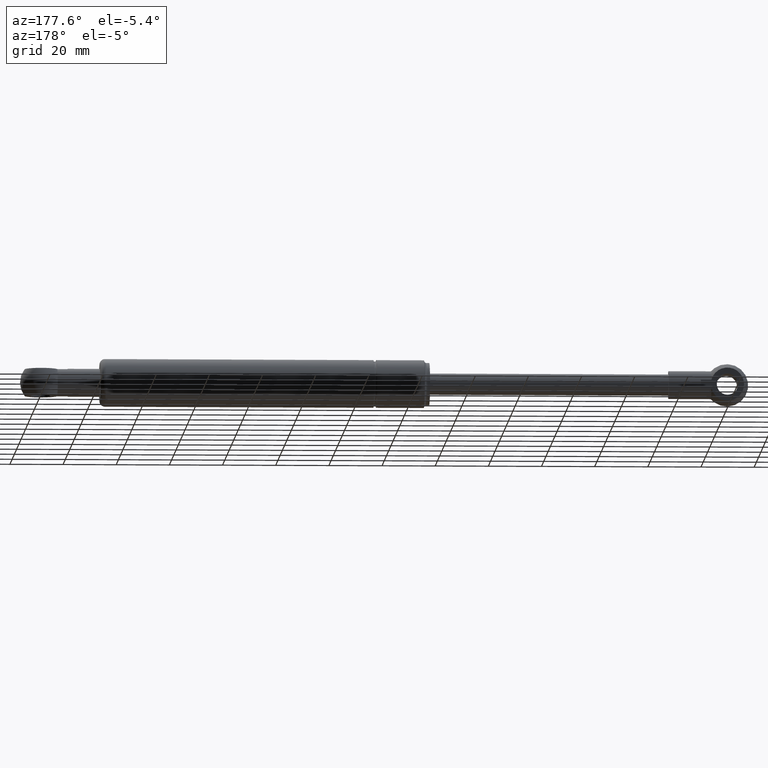
[diagram: clean part render]
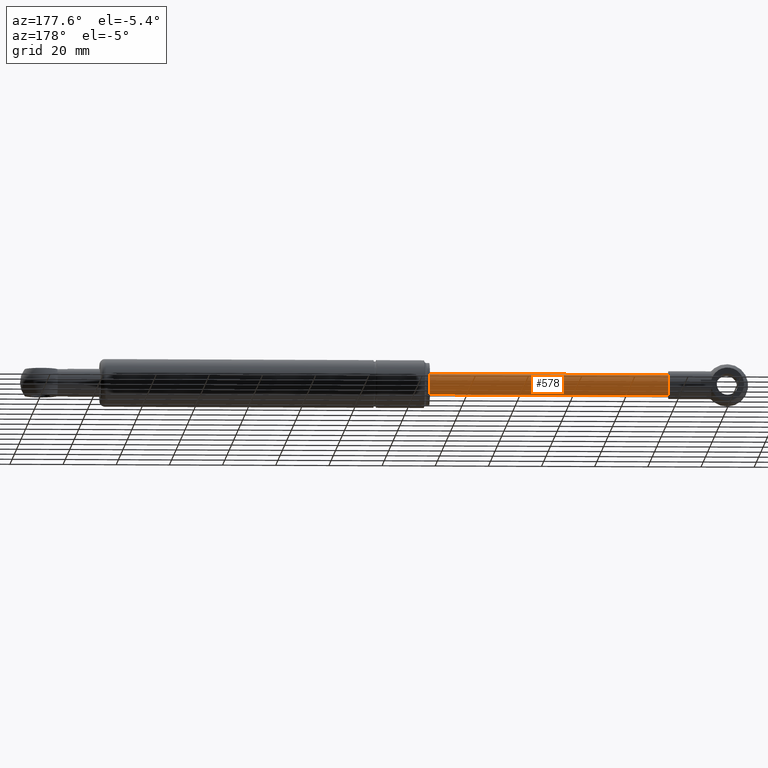
[diagram: same view with one face highlighted and labeled with its STEP entity id]
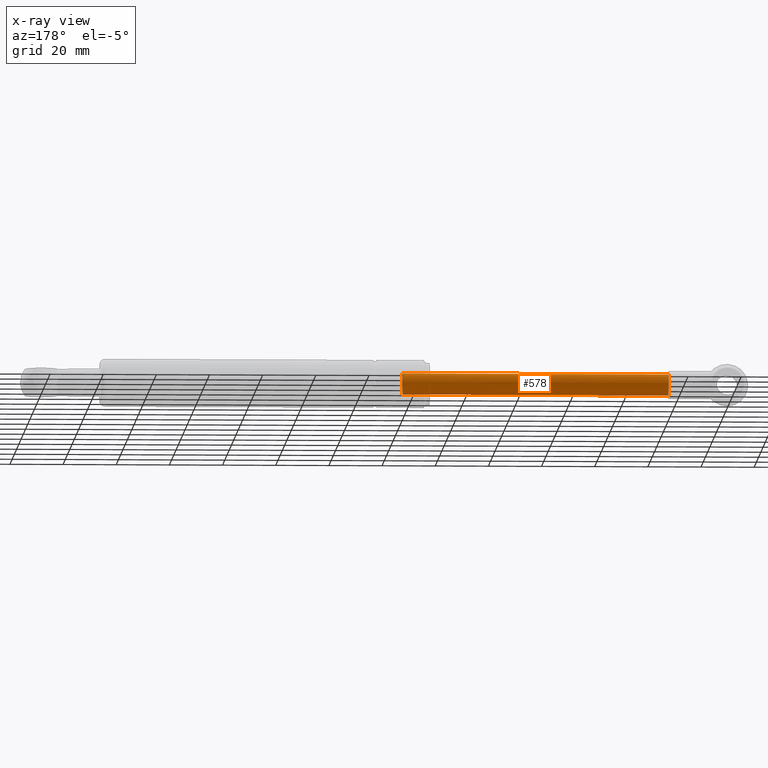
[diagram: x-ray of the same camera — body ghosted, the highlighted face saturated]
A machine part, auxiliary view. The second image highlights one B-rep face of the part: STEP entity #578.
The next image is the same camera in x-ray: the body ghosted, the highlighted face saturated — about 0% of this face is hidden behind the body in this view.
In plain terms, the highlighted cylindrical surface (bore or boss wall) has radius 4 mm, axis along (-1, 0, -0).
Its self-contained STEP definition (entity closure, byte-faithful):
#73=CYLINDRICAL_SURFACE('',#660,4.00000000000001);
#110=FACE_BOUND('',#225,.T.);
#152=FACE_OUTER_BOUND('',#224,.T.);
#224=EDGE_LOOP('',(#445));
#225=EDGE_LOOP('',(#446));
#273=CIRCLE('',#653,4.00000000000001);
#275=CIRCLE('',#656,4.);
#316=VERTEX_POINT('',#977);
#318=VERTEX_POINT('',#982);
#362=EDGE_CURVE('',#316,#316,#273,.T.);
#364=EDGE_CURVE('',#318,#318,#275,.T.);
#445=ORIENTED_EDGE('',*,*,#362,.T.);
#446=ORIENTED_EDGE('',*,*,#364,.T.);
#578=ADVANCED_FACE('',(#152,#110),#73,.T.);
#653=AXIS2_PLACEMENT_3D('',#978,#809,#810);
#656=AXIS2_PLACEMENT_3D('',#983,#815,#816);
#660=AXIS2_PLACEMENT_3D('',#988,#823,#824);
#809=DIRECTION('center_axis',(1.,0.,0.));
#810=DIRECTION('ref_axis',(0.,0.,1.));
#815=DIRECTION('center_axis',(-1.,0.,0.));
#816=DIRECTION('ref_axis',(0.,0.,1.));
#823=DIRECTION('center_axis',(-1.,0.,0.));
#824=DIRECTION('ref_axis',(0.,0.,1.));
#977=CARTESIAN_POINT('',(0.,4.89858719658942E-16,4.00000000000001));
#978=CARTESIAN_POINT('Origin',(0.,0.,0.));
#982=CARTESIAN_POINT('',(100.,0.,4.));
#983=CARTESIAN_POINT('Origin',(100.,0.,0.));
#988=CARTESIAN_POINT('Origin',(50.,0.,0.));